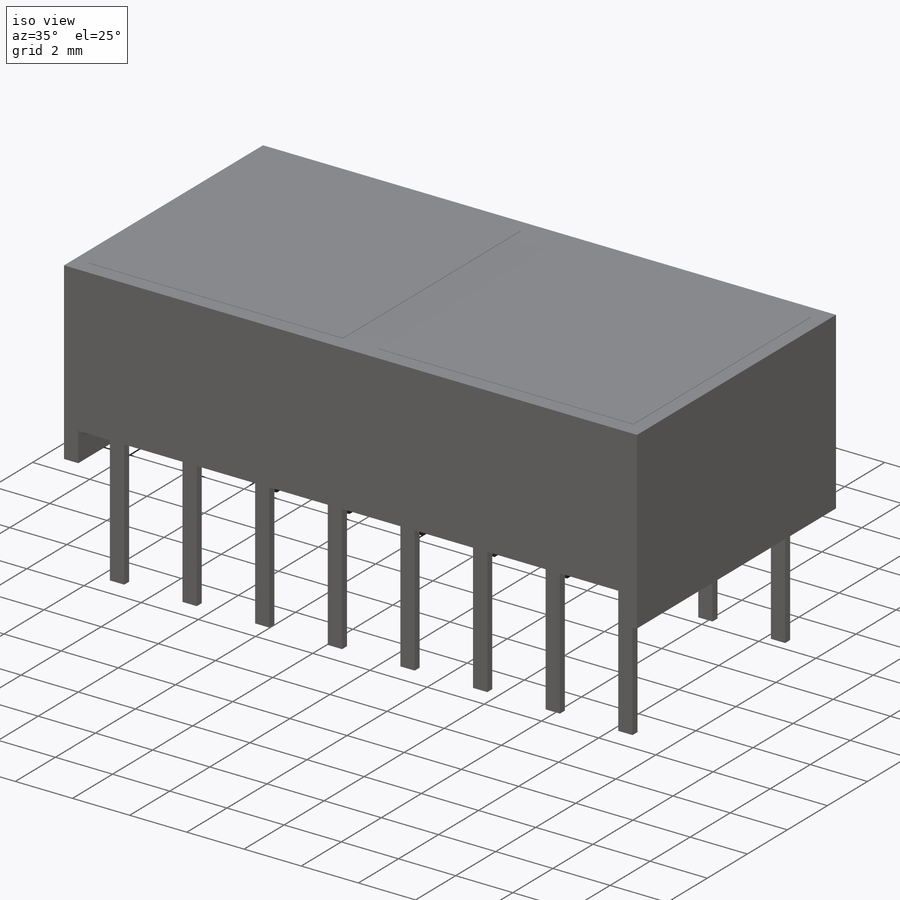
[diagram: iso view]
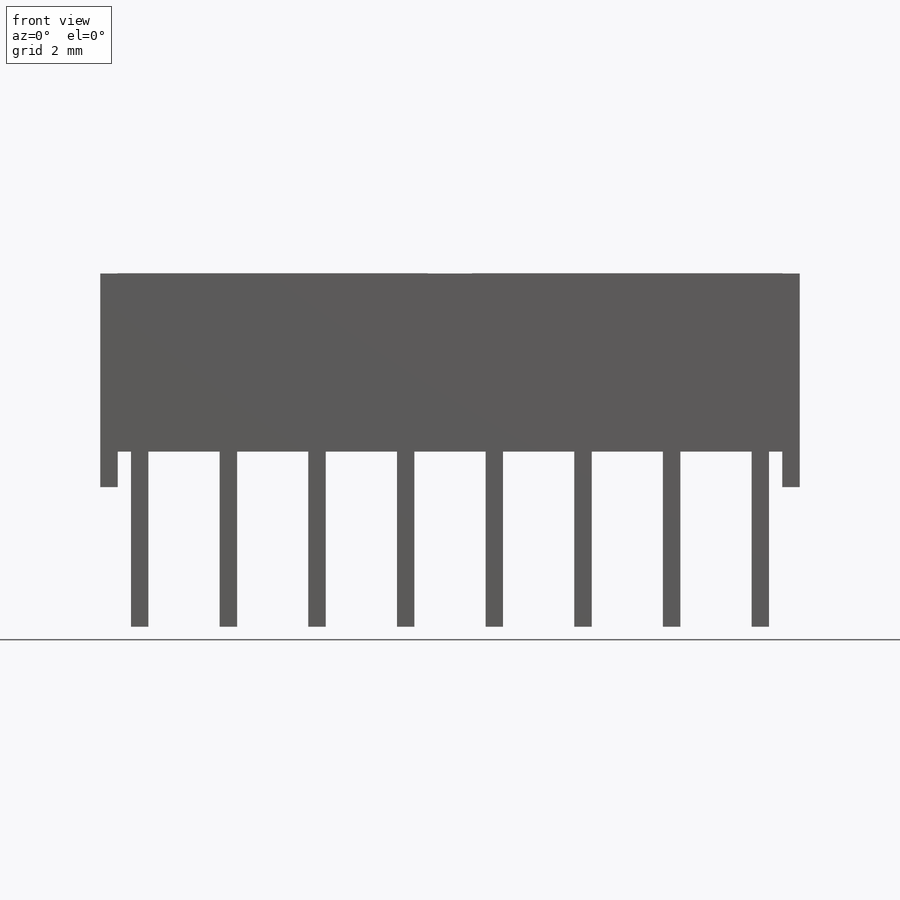
[diagram: front view]
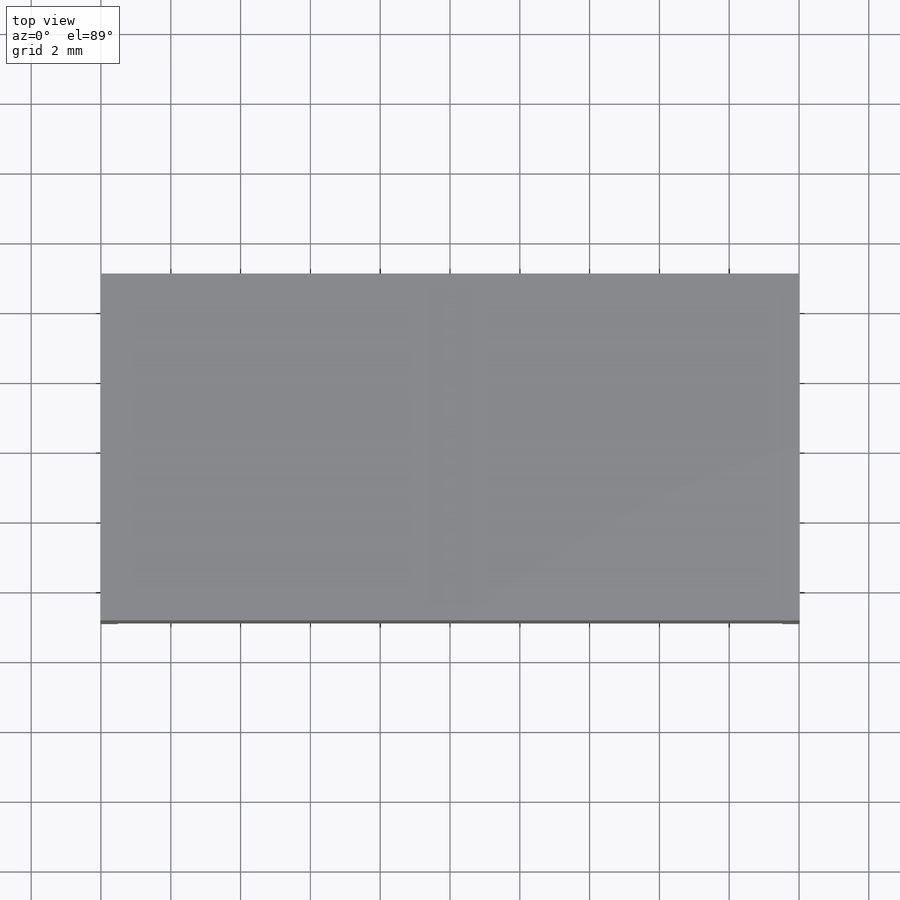
[diagram: top view]
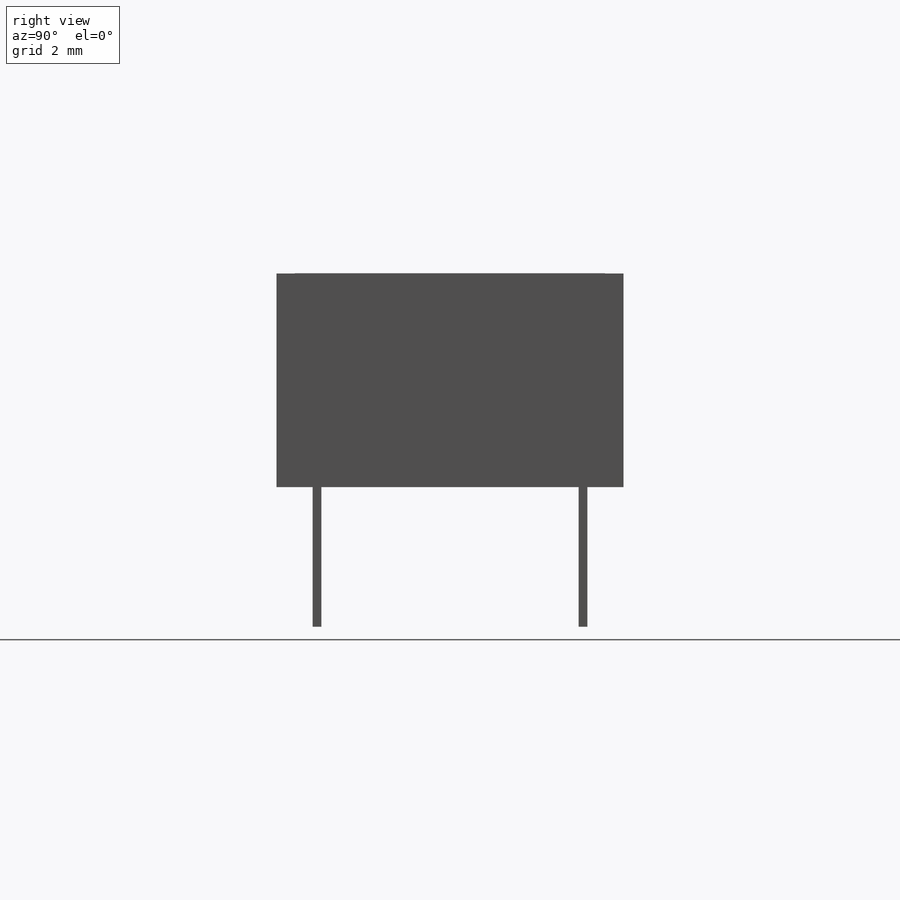
[diagram: right view]
SOLIDWORKS PART (.sldprt)
format: sldprt  version: not decoded by parser v0  size: 957,440 bytes
history: native  units: mm
features: sketch x7, extrude x4, cut_extrude x3, material x1 (+12 scaffold rows collapsed)
feature tree (27):
  scaffold x12  (default folders/planes/origin — collapsed)
  material  "Material <not specified>"
  sketch  "Sketch1"  dims[D1=20.04mm D2=9.94mm D3=1.27mm D4=8.89mm D5=8.89mm]
  extrude  "Extrude1"  Depth=6.12mm
  extrude  "Extrude2"  [1 undecoded]
  sketch  "Sketch1<3>"  dims[D1=3.0mm D2=0.01mm]
  sketch  "Sketch2"  dims[D1=0.5mm D2=0.5mm D3=1.02mm]
  cut_extrude  "Cut-Extrude1"  [1 undecoded]
  sketch  "Sketch3"  dims[D1=0.25mm D2=0.5mm D3=2.54mm D4=2.54mm D5=2.54mm D6=7.62mm D7=2.54mm D8=2.54mm D9=2.54mm D10=2.54mm]
  extrude  "Extrude3"  [1 undecoded]
  extrude  "Extrude4"  [1 undecoded]
  sketch  "Sketch3<3>"  dims[D1=4.0mm]
  sketch  "Sketch4"  dims[D1=1.5mm D2=1.2mm]
  cut_extrude  "Cut-Extrude2"  Depth=0.05mm
  sketch  "Sketch5"
  cut_extrude  "Cut-Extrude3"  Depth=0.01mm
decode coverage: 9 of 14 modeling features carry decoded parameters
note: 4 parameter values undecoded
summary: no parameter record found for 4 features
note: suppression state not decoded; provenance and decode notes live in map.json
